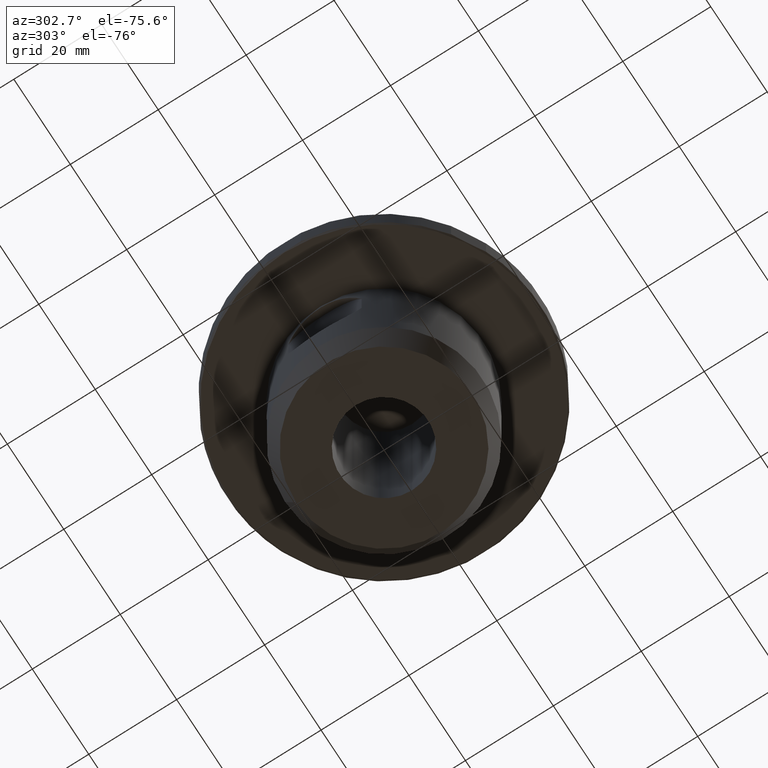
[diagram: clean part render]
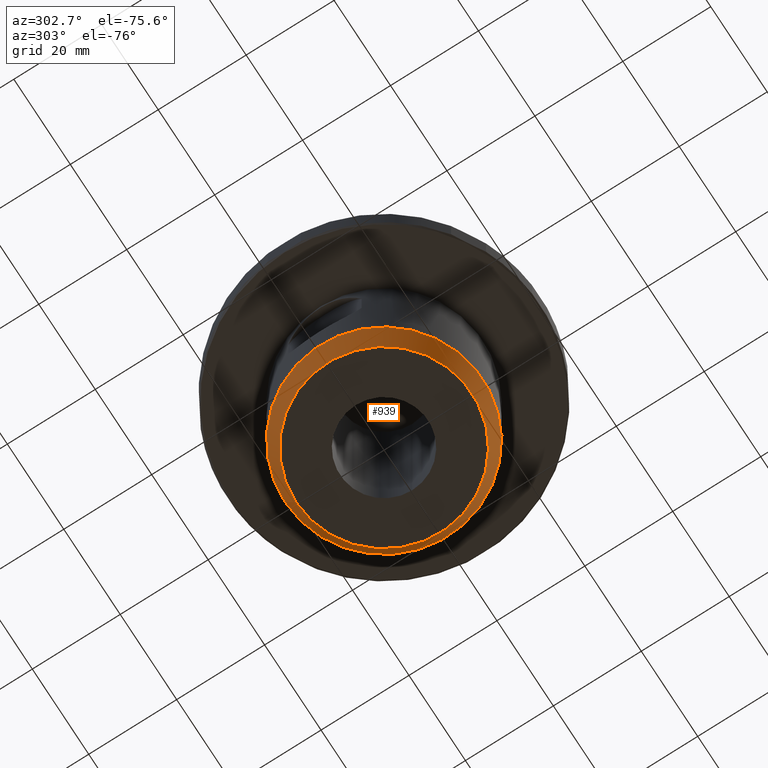
[diagram: same view with one face highlighted and labeled with its STEP entity id]
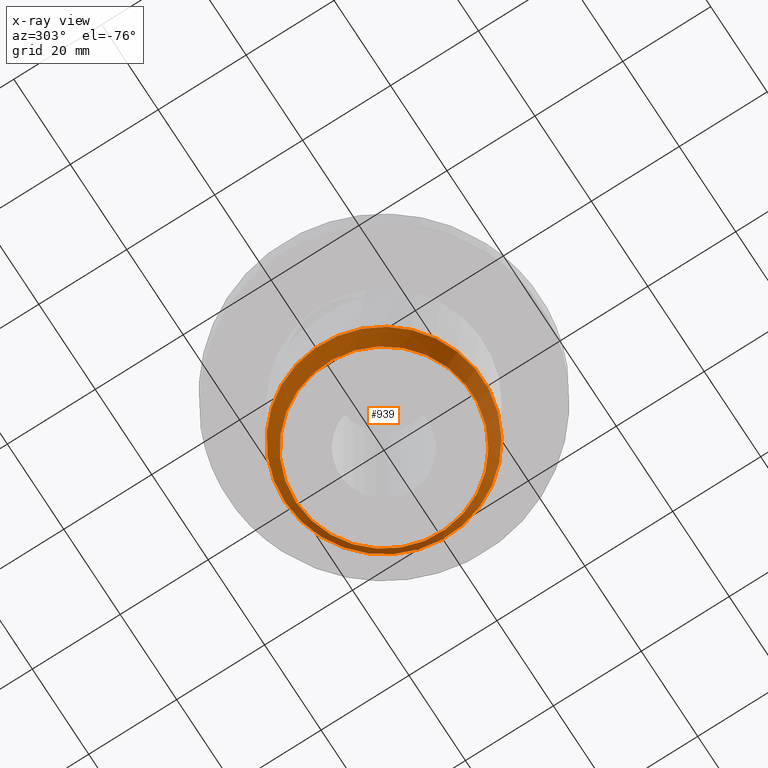
[diagram: x-ray of the same camera — body ghosted, the highlighted face saturated]
A machine part, auxiliary view. The second image highlights one B-rep face of the part: STEP entity #939.
The next image is the same camera in x-ray: the body ghosted, the highlighted face saturated — about 0% of this face is hidden behind the body in this view.
In plain terms, the highlighted conical surface has half-angle 25 deg.
Its self-contained STEP definition (entity closure, byte-faithful):
#25=CONICAL_SURFACE('',#1026,20.,0.436332312998584);
#60=CIRCLE('',#1019,22.5);
#63=CIRCLE('',#1025,20.);
#173=ORIENTED_EDGE('',*,*,#431,.T.);
#174=ORIENTED_EDGE('',*,*,#438,.F.);
#431=EDGE_CURVE('',#564,#564,#60,.T.);
#438=EDGE_CURVE('',#571,#571,#63,.T.);
#564=VERTEX_POINT('',#1458);
#571=VERTEX_POINT('',#1488);
#721=EDGE_LOOP('',(#173));
#722=EDGE_LOOP('',(#174));
#817=FACE_BOUND('',#721,.T.);
#818=FACE_BOUND('',#722,.T.);
#939=ADVANCED_FACE('',(#817,#818),#25,.T.);
#1019=AXIS2_PLACEMENT_3D('',#1457,#1151,#1152);
#1025=AXIS2_PLACEMENT_3D('',#1487,#1163,#1164);
#1026=AXIS2_PLACEMENT_3D('',#1489,#1165,#1166);
#1151=DIRECTION('',(-5.47430718319515E-16,-8.51929311524195E-24,-1.));
#1152=DIRECTION('',(-6.38378239159465E-16,1.,-3.83055215771257E-23));
#1163=DIRECTION('',(-5.47430718319515E-16,-8.51929311524195E-24,-1.));
#1164=DIRECTION('',(-6.38378239159465E-16,1.,-3.83055215771257E-23));
#1165=DIRECTION('',(5.47430718319515E-16,8.51929311524195E-24,1.));
#1166=DIRECTION('',(6.38378239159465E-16,-1.,3.83055215771257E-23));
#1457=CARTESIAN_POINT('',(-1.14368483915483E-13,-9.81645354889855E-14,-37.6387326987261));
#1458=CARTESIAN_POINT('',(-1.28731994296571E-13,22.4999999999999,-37.6387326987261));
#1487=CARTESIAN_POINT('',(-1.17303406325322E-13,-9.81645355346597E-14,-43.));
#1488=CARTESIAN_POINT('',(-1.30070971108511E-13,19.9999999999999,-43.));
#1489=CARTESIAN_POINT('',(-1.17303406325322E-13,-9.81645355346597E-14,-43.));